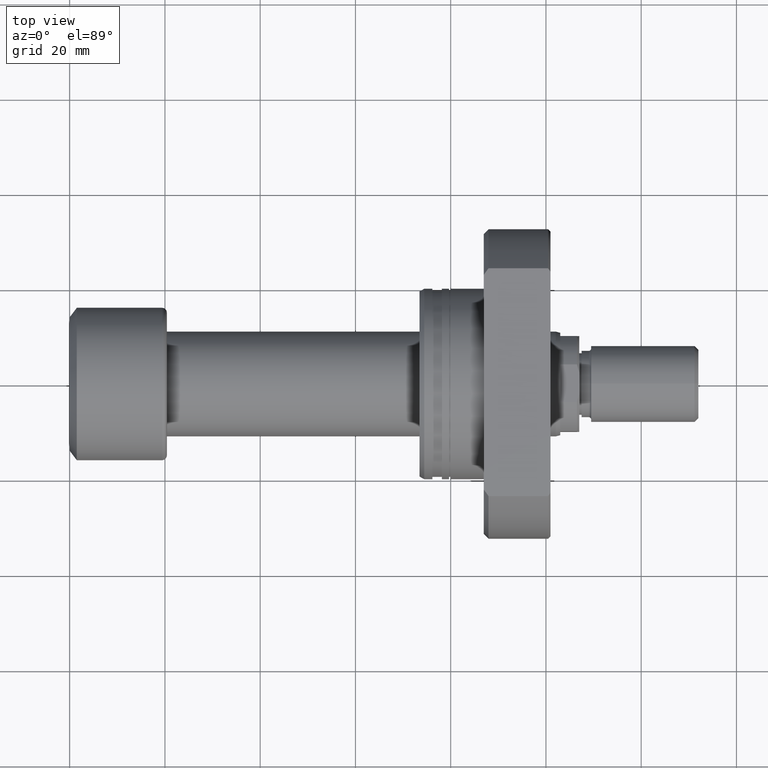
[diagram: clean part render]
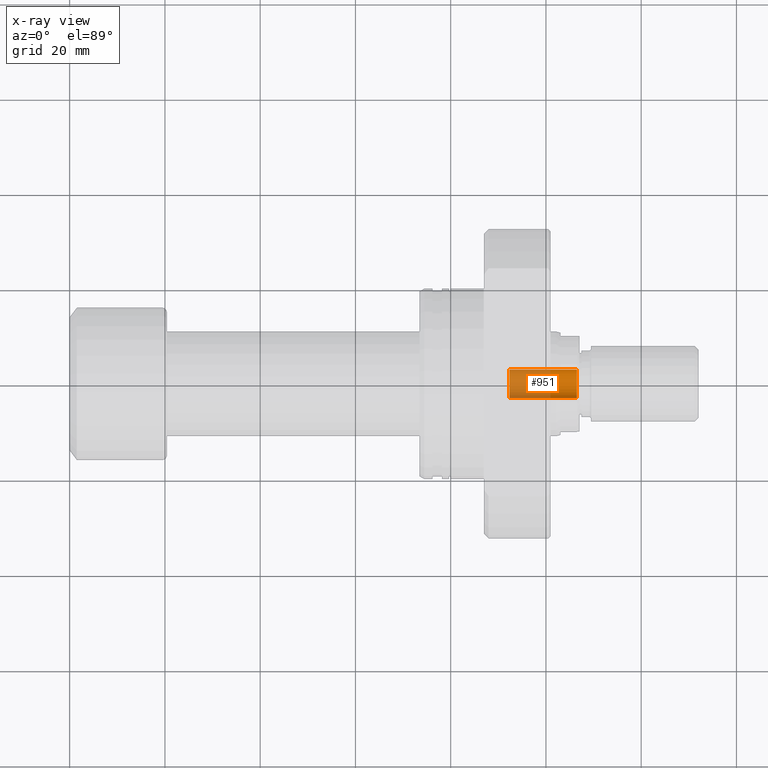
[diagram: x-ray — body ghosted, one internal face saturated and labeled with its STEP entity id]
A machine part, top view, then the same camera in x-ray: the body is ghosted and one INTERNAL B-rep face — a face not visible from any outside direction — is saturated and labeled: STEP entity #951.
In plain terms, the highlighted cylindrical surface (edge-blend (fillet) strip) has radius 3 mm, axis along (1, -0, 0).
Its self-contained STEP definition (entity closure, byte-faithful):
#133 = VERTEX_POINT ( 'NONE', #2323 ) ;
#154 = CIRCLE ( 'NONE', #2476, 3.000000000000519140 ) ;
#354 = CARTESIAN_POINT ( 'NONE',  ( 92.30000000000003979, 2.999999999998989697, 0.000000000000000000 ) ) ;
#501 = ORIENTED_EDGE ( 'NONE', *, *, #1959, .F. ) ;
#544 = CARTESIAN_POINT ( 'NONE',  ( 106.5000000000000711, -1.764987011459226881E-12, 0.000000000000000000 ) ) ;
#598 = DIRECTION ( 'NONE',  ( 1.850371707708274167E-14, 1.000000000000000000, 0.000000000000000000 ) ) ;
#604 = CARTESIAN_POINT ( 'NONE',  ( 92.29999999999992610, -3.000000000002048584, 3.673940397442695394E-16 ) ) ;
#619 = DIRECTION ( 'NONE',  ( 1.000000000000000000, -1.657264799492230625E-14, -0.000000000000000000 ) ) ;
#740 = CARTESIAN_POINT ( 'NONE',  ( 106.5000000000001279, 2.999999999998753886, 0.000000000000000000 ) ) ;
#807 = AXIS2_PLACEMENT_3D ( 'NONE', #544, #837, #1974 ) ;
#837 = DIRECTION ( 'NONE',  ( 1.000000000000000000, -1.657264799492195599E-14, 0.000000000000000000 ) ) ;
#848 = DIRECTION ( 'NONE',  ( 1.850371707708274167E-14, 1.000000000000000000, 0.000000000000000000 ) ) ;
#951 = ADVANCED_FACE ( 'NONE', ( #1468 ), #2626, .F. ) ;
#1468 = FACE_OUTER_BOUND ( 'NONE', #1521, .T. ) ;
#1521 = EDGE_LOOP ( 'NONE', ( #2816, #2227, #3512, #501 ) ) ;
#1737 = LINE ( 'NONE', #604, #2670 ) ;
#1959 = EDGE_CURVE ( 'NONE', #133, #2183, #3176, .T. ) ;
#1974 = DIRECTION ( 'NONE',  ( -1.850371707708274167E-14, -1.000000000000000000, 0.000000000000000000 ) ) ;
#2010 = DIRECTION ( 'NONE',  ( 1.000000000000000000, -1.657264799492230625E-14, 0.000000000000000000 ) ) ;
#2062 = CARTESIAN_POINT ( 'NONE',  ( 92.29999999999998295, -1.529655409931328684E-12, 0.000000000000000000 ) ) ;
#2168 = CARTESIAN_POINT ( 'NONE',  ( 92.29999999999992610, -3.000000000002048584, 3.673940397442695394E-16 ) ) ;
#2183 = VERTEX_POINT ( 'NONE', #740 ) ;
#2213 = CARTESIAN_POINT ( 'NONE',  ( 106.5000000000000142, -3.000000000002283951, 3.673940397442838868E-16 ) ) ;
#2227 = ORIENTED_EDGE ( 'NONE', *, *, #3508, .T. ) ;
#2296 = VECTOR ( 'NONE', #619, 1000.000000000000000 ) ;
#2323 = CARTESIAN_POINT ( 'NONE',  ( 92.30000000000003979, 2.999999999998989697, 0.000000000000000000 ) ) ;
#2337 = CARTESIAN_POINT ( 'NONE',  ( 92.29999999999998295, -1.529655409931328684E-12, 0.000000000000000000 ) ) ;
#2411 = CIRCLE ( 'NONE', #807, 3.000000000000519140 ) ;
#2476 = AXIS2_PLACEMENT_3D ( 'NONE', #2337, #2010, #598 ) ;
#2562 = VERTEX_POINT ( 'NONE', #2213 ) ;
#2626 = CYLINDRICAL_SURFACE ( 'NONE', #2656, 3.000000000000519140 ) ;
#2656 = AXIS2_PLACEMENT_3D ( 'NONE', #2062, #2855, #848 ) ;
#2670 = VECTOR ( 'NONE', #2879, 1000.000000000000000 ) ;
#2689 = EDGE_CURVE ( 'NONE', #2562, #2183, #2411, .T. ) ;
#2738 = EDGE_CURVE ( 'NONE', #2948, #133, #154, .T. ) ;
#2816 = ORIENTED_EDGE ( 'NONE', *, *, #2738, .F. ) ;
#2855 = DIRECTION ( 'NONE',  ( 1.000000000000000000, -1.657264799492230625E-14, -0.000000000000000000 ) ) ;
#2879 = DIRECTION ( 'NONE',  ( 1.000000000000000000, -1.657264799492230625E-14, -0.000000000000000000 ) ) ;
#2948 = VERTEX_POINT ( 'NONE', #2168 ) ;
#3176 = LINE ( 'NONE', #354, #2296 ) ;
#3508 = EDGE_CURVE ( 'NONE', #2948, #2562, #1737, .T. ) ;
#3512 = ORIENTED_EDGE ( 'NONE', *, *, #2689, .T. ) ;